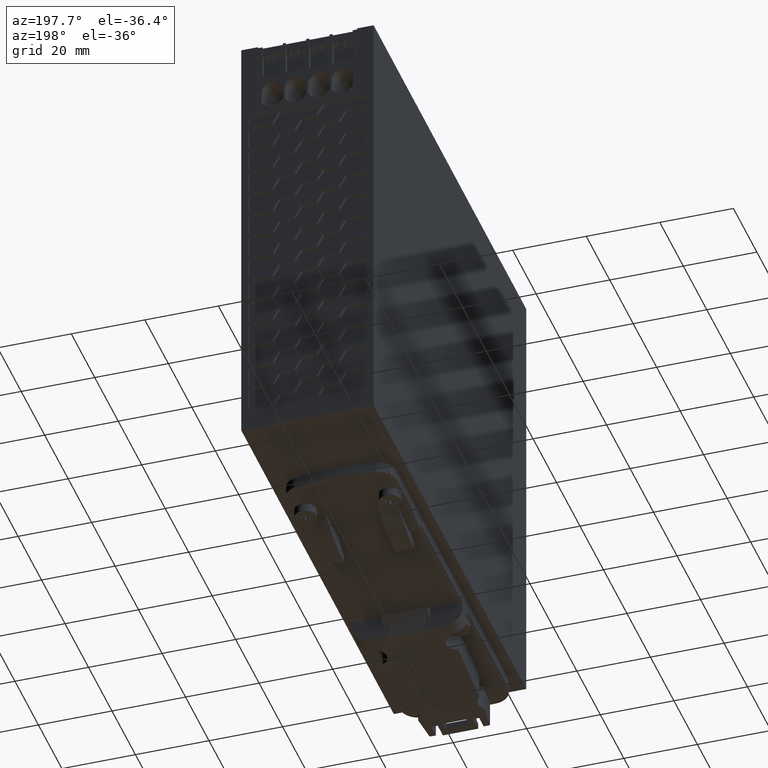
[diagram: clean part render]
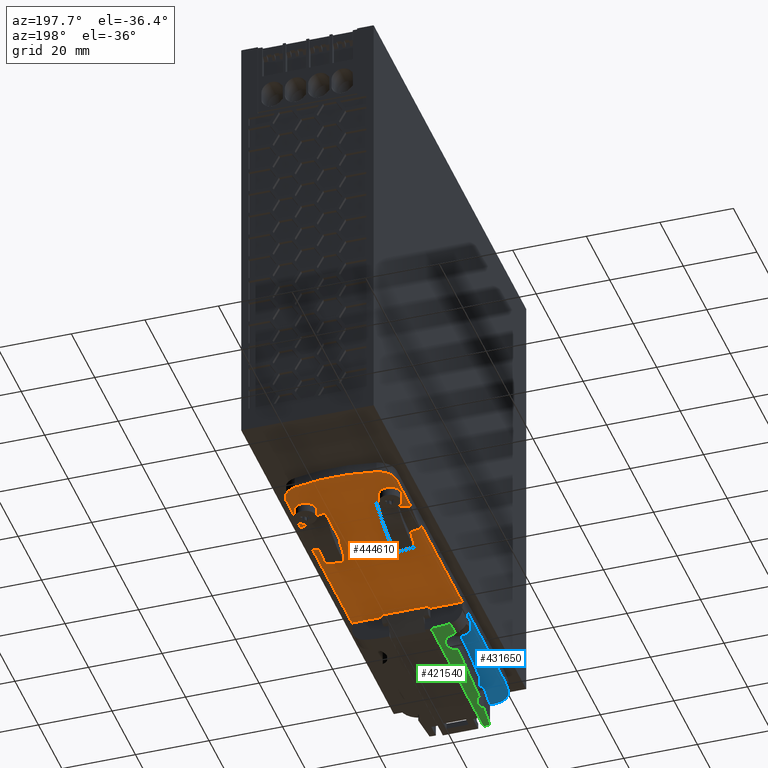
[diagram: same view with three faces highlighted in distinct colors, each labeled with its STEP entity id]
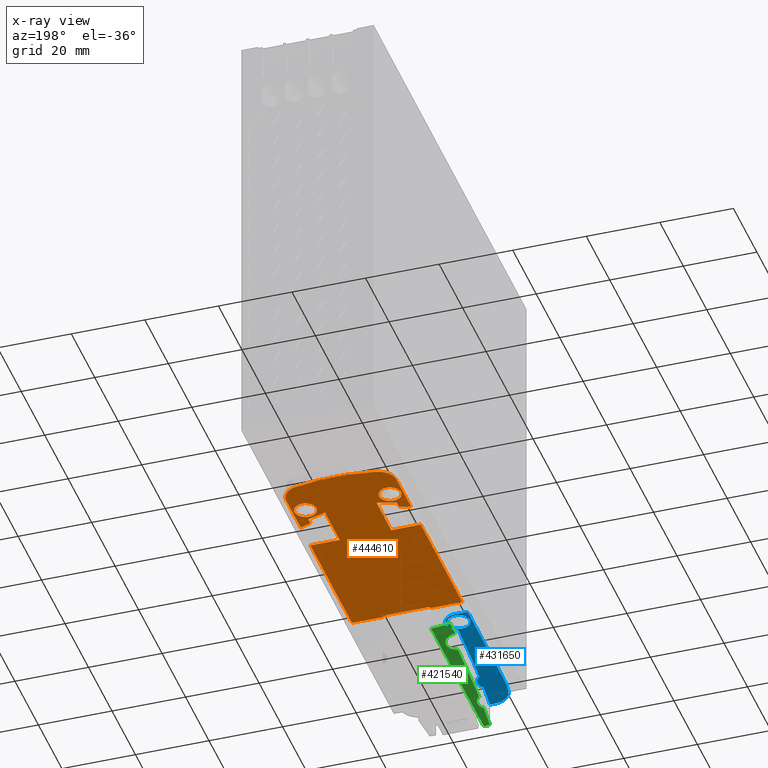
[diagram: x-ray of the same camera — body ghosted, the three highlighted faces saturated]
A machine part, auxiliary view with three faces highlighted in distinct colors.
The next image is the same camera in x-ray (body ghosted, the three faces saturated) — at least one of them is partly hidden behind the body in this view.
Their STEP definitions:

[orange] entity #444610 — the highlighted planar face has unit normal (0, 0, -1).
#406170=CARTESIAN_POINT('',(33.0006696575565,88.711504177131,
6.59999999999972));
#406180=VERTEX_POINT('',#406170);
#406270=CARTESIAN_POINT('',(33.0007818670326,80.5489273646893,
6.59999999999972));
#406280=VERTEX_POINT('',#406270);
#406310=CARTESIAN_POINT('',(33.0001130694827,129.2,6.59999999999972));
#406320=DIRECTION('',(1.37468202358229E-5,-0.999999999905513,
3.26265223505973E-55));
#406330=VECTOR('',#406320,1.);
#406340=LINE('',#406310,#406330);
#406350=CARTESIAN_POINT('',(33.0012698791509,45.0489273680436,
6.59999999999972));
#406360=VERTEX_POINT('',#406350);
#406370=EDGE_CURVE('',#406280,#406360,#406340,.T.);
#406820=CARTESIAN_POINT('',(33.000499715995,101.073749299711,
6.59999999999972));
#406830=VERTEX_POINT('',#406820);
#406860=CARTESIAN_POINT('',(33.0001130694827,129.2,6.59999999999972));
#406870=DIRECTION('',(1.37468202358229E-5,-0.999999999905513,
3.26265223505973E-55));
#406880=VECTOR('',#406870,1.);
#406890=LINE('',#406860,#406880);
#406900=EDGE_CURVE('',#406830,#406180,#406890,.T.);
#407120=CARTESIAN_POINT('',(29.1115438119969,105.948676054611,
6.59999999999972));
#407130=VERTEX_POINT('',#407120);
#407160=CARTESIAN_POINT('',(28.0004997164675,101.073680565609,
6.59999999999972));
#407170=DIRECTION('',(9.95682444457783E-60,-3.26265223399926E-55,-1.));
#407180=DIRECTION('',(-1.,1.38913403349705E-19,-9.95682444457783E-60));
#407190=AXIS2_PLACEMENT_3D('',#407160,#407170,#407180);
#407200=CIRCLE('',#407190,4.99999999999995);
#407210=EDGE_CURVE('',#407130,#406830,#407200,.T.);
#407450=CARTESIAN_POINT('',(6.88932159187441,105.948370569717,
6.59999999999972));
#407460=VERTEX_POINT('',#407450);
#407490=CARTESIAN_POINT('',(18.0011028567024,57.1987211645928,
6.59999999999972));
#407500=DIRECTION('',(9.95682444457783E-60,-3.26265223399926E-55,-1.));
#407510=DIRECTION('',(-1.,1.38913403349705E-19,-9.95682444457783E-60));
#407520=AXIS2_PLACEMENT_3D('',#407490,#407500,#407510);
#407530=CIRCLE('',#407520,49.9999999999993);
#407540=EDGE_CURVE('',#407460,#407130,#407530,.T.);
#408220=CARTESIAN_POINT('',(0.00178708709996158,45.0484737300857,
6.59999999999972));
#408230=DIRECTION('',(0.999999999905513,1.37468202375279E-5,
5.47171506780131E-60));
#408240=VECTOR('',#408230,1.);
#408250=LINE('',#408220,#408240);
#408260=CARTESIAN_POINT('',(24.301269879973,45.0488077707076,
6.59999999999972));
#408270=VERTEX_POINT('',#408260);
#408280=EDGE_CURVE('',#408270,#406360,#408250,.T.);
#409920=CARTESIAN_POINT('',(24.3001130686608,129.2,6.59999999999972));
#409930=DIRECTION('',(1.37468202343577E-5,-0.999999999905512,
3.26265223505973E-55));
#409940=VECTOR('',#409930,1.);
#409950=LINE('',#409920,#409940);
#409960=CARTESIAN_POINT('',(24.3012630065629,45.5488077706603,
6.59999999999972));
#409970=VERTEX_POINT('',#409960);
#409980=EDGE_CURVE('',#409970,#408270,#409950,.T.);
#410400=CARTESIAN_POINT('',(0.00178708709996158,45.548473730133,
6.59999999999972));
#410410=DIRECTION('',(0.999999999905512,1.37468202365522E-5,
5.47171506811966E-60));
#410420=VECTOR('',#410410,1.);
#410430=LINE('',#410400,#410420);
#410440=CARTESIAN_POINT('',(11.7012630077534,45.5486345607253,
6.59999999999972));
#410450=VERTEX_POINT('',#410440);
#410460=EDGE_CURVE('',#410450,#409970,#410430,.T.);
#411010=CARTESIAN_POINT('',(11.7001130674701,129.2,6.59999999999972));
#411020=DIRECTION('',(-1.37468202363879E-5,0.999999999905512,
-3.26265223505973E-55));
#411030=VECTOR('',#411020,1.);
#411040=LINE('',#411010,#411030);
#411050=CARTESIAN_POINT('',(11.7012698811635,45.0486345607726,
6.59999999999972));
#411060=VERTEX_POINT('',#411050);
#411070=EDGE_CURVE('',#411060,#410450,#411040,.T.);
#411450=CARTESIAN_POINT('',(0.00178708709996158,45.0484737300857,
6.59999999999972));
#411460=DIRECTION('',(0.999999999905513,1.37468202375279E-5,
5.47171506780131E-60));
#411470=VECTOR('',#411460,1.);
#411480=LINE('',#411450,#411470);
#411490=CARTESIAN_POINT('',(3.00126988198557,45.0485149634365,
6.59999999999972));
#411500=VERTEX_POINT('',#411490);
#411510=EDGE_CURVE('',#411500,#411060,#411480,.T.);
#412400=CARTESIAN_POINT('',(3.00011306664807,129.2,6.59999999999972));
#412410=DIRECTION('',(1.37468202359206E-5,-0.999999999905512,
3.26265223505973E-55));
#412420=VECTOR('',#412410,1.);
#412430=LINE('',#412400,#412420);
#412440=CARTESIAN_POINT('',(3.00078186986719,80.5485149600822,
6.59999999999972));
#412450=VERTEX_POINT('',#412440);
#412460=EDGE_CURVE('',#412450,#411500,#412430,.T.);
#412830=CARTESIAN_POINT('',(3.00066966039108,88.7110917725239,
6.59999999999974));
#412840=VERTEX_POINT('',#412830);
#412870=CARTESIAN_POINT('',(3.00011306664807,129.2,6.59999999999972));
#412880=DIRECTION('',(1.37468202359206E-5,-0.999999999905512,
3.26265223505973E-55));
#412890=VECTOR('',#412880,1.);
#412900=LINE('',#412870,#412890);
#412910=CARTESIAN_POINT('',(3.00049971882965,101.073336895104,
6.59999999999972));
#412920=VERTEX_POINT('',#412910);
#412930=EDGE_CURVE('',#412920,#412840,#412900,.T.);
#413160=CARTESIAN_POINT('',(8.00049971835728,101.073405629205,
6.59999999999972));
#413170=DIRECTION('',(9.95682444457783E-60,-3.26265223399926E-55,-1.));
#413180=DIRECTION('',(-1.,1.38913403349705E-19,-9.95682444457783E-60));
#413190=AXIS2_PLACEMENT_3D('',#413160,#413170,#413180);
#413200=CIRCLE('',#413190,5.00000000000008);
#413210=EDGE_CURVE('',#412920,#407460,#413200,.T.);
#413410=CARTESIAN_POINT('',(0.00178708709996158,80.5484737334401,
6.59999999999972));
#413420=DIRECTION('',(-0.999999999905513,-1.37468202355511E-5,
-5.47171506844629E-60));
#413430=VECTOR('',#413420,1.);
#413440=LINE('',#413410,#413430);
#413450=CARTESIAN_POINT('',(11.0007818691113,80.5486249346441,
6.59999999999972));
#413460=VERTEX_POINT('',#413450);
#413470=EDGE_CURVE('',#413460,#412450,#413440,.T.);
#414300=CARTESIAN_POINT('',(11.000113067404,129.2,6.59999999999972));
#414310=DIRECTION('',(-1.3746820235798E-5,0.999999999905513,
-3.26265223505973E-55));
#414320=VECTOR('',#414310,1.);
#414330=LINE('',#414300,#414320);
#414340=CARTESIAN_POINT('',(11.00060950093,93.0873923219355,
6.59999999999972));
#414350=VERTEX_POINT('',#414340);
#414360=EDGE_CURVE('',#413460,#414350,#414330,.T.);
#414920=CARTESIAN_POINT('',(6.00011306693153,129.2,6.59999999999972));
#414930=DIRECTION('',(-1.37468202359883E-5,0.999999999905512,
-3.26265223505973E-55));
#414940=VECTOR('',#414930,1.);
#414950=LINE('',#414920,#414940);
#414960=CARTESIAN_POINT('',(6.00065459239778,89.8072199316904,
6.59999999999972));
#414970=VERTEX_POINT('',#414960);
#414980=CARTESIAN_POINT('',(6.00063035828749,91.5701083575295,
6.59999999999972));
#414990=VERTEX_POINT('',#414980);
#415000=EDGE_CURVE('',#414970,#414990,#414950,.T.);
#417530=CARTESIAN_POINT('',(6.00065459239785,89.8072199267511,
6.59999999999972));
#417540=CARTESIAN_POINT('',(5.98476421142438,89.8022766316507,
6.59999999999972));
#417550=CARTESIAN_POINT('',(5.95298958652914,89.7923702841277,
6.59999999999972));
#417560=CARTESIAN_POINT('',(5.88946914156527,89.7724650776187,
6.59999999999972));
#417570=CARTESIAN_POINT('',(5.8101224164082,89.7474118773588,
6.59999999999972));
#417580=CARTESIAN_POINT('',(5.7387753413328,89.7246590431978,
6.59999999999972));
#417590=CARTESIAN_POINT('',(5.69123806289457,89.709404959447,
6.59999999999972));
#417600=CARTESIAN_POINT('',(5.65955442620393,89.6992109631759,
6.59999999999972));
#417610=CARTESIAN_POINT('',(5.57245576005785,89.6710776141812,
6.59999999999972));
#417620=CARTESIAN_POINT('',(5.43010635000332,89.6244959087909,
6.59999999999972));
#417630=CARTESIAN_POINT('',(5.05127607754603,89.4979564213531,
6.59999999999972));
#417640=CARTESIAN_POINT('',(4.48590698230466,89.2994310857445,
6.59999999999972));
#417650=CARTESIAN_POINT('',(3.86339380902277,89.0633757548544,
6.59999999999972));
#417660=CARTESIAN_POINT('',(3.4308793824773,88.8899380064901,
6.59999999999972));
#417670=CARTESIAN_POINT('',(3.23088705584881,88.8075050167989,
6.59999999999972));
#417680=CARTESIAN_POINT('',(3.14641726128744,88.7722888845206,
6.59999999999972));
#417690=CARTESIAN_POINT('',(3.11955406311227,88.7610513605265,
6.59999999999972));
#417700=CARTESIAN_POINT('',(3.10420751573085,88.7546207225749,
6.59999999999972));
#417710=CARTESIAN_POINT('',(3.08119201267528,88.7449644878059,
6.59999999999974));
#417720=CARTESIAN_POINT('',(3.05434811198608,88.7336809751512,
6.59999999999972));
#417730=CARTESIAN_POINT('',(3.02750737338545,88.7223899577265,
6.59999999999972));
#417740=CARTESIAN_POINT('',(3.01408794729577,88.7167422076046,
6.59999999999972));
#417750=CARTESIAN_POINT('',(3.00641989085222,88.7135144791262,
6.59999999999972));
#417760=CARTESIAN_POINT('',(3.00258618325065,88.7118998529655,
6.59999999999972));
#417770=CARTESIAN_POINT('',(3.00066965469374,88.7110917684843,
6.59999999999972));
#417780=B_SPLINE_CURVE_WITH_KNOTS('',3,(#417530,#417540,#417550,#417560,
#417570,#417580,#417590,#417600,#417610,#417620,#417630,#417640,#417650,
#417660,#417670,#417680,#417690,#417700,#417710,#417720,#417730,#417740,
#417750,#417760,#417770),.UNSPECIFIED.,.F.,.F.,(4,1,1,1,1,1,1,1,1,1,1,1,
1,1,1,1,1,1,1,1,1,1,4),(0.,0.015624733671173,0.031249469653176,
0.062499044700485,0.09374860621571,0.101561002358867,0.109373399372656,
0.124998194456258,0.187498141469384,0.249998122328627,0.499998939434173,
0.750035154333188,0.875018056520831,0.937509067185836,0.953131804020811,
0.960943172601073,0.964848856958487,0.968754541260401,0.984377271003576,
0.992188635879079,0.9960943180232,0.998047159057379,1.),.UNSPECIFIED.);
#417790=EDGE_CURVE('',#414970,#412840,#417780,.T.);
#418680=CARTESIAN_POINT('',(11.0006095006035,93.0873923209287,
6.59999999999972));
#418690=CARTESIAN_POINT('',(11.000196751031,93.0872900597221,
6.59999999999972));
#418700=CARTESIAN_POINT('',(10.999371709707,93.0870836924227,
6.59999999999972));
#418710=CARTESIAN_POINT('',(10.9977214920801,93.0866715037043,
6.59999999999972));
#418720=CARTESIAN_POINT('',(10.9948336822771,93.0859498746094,
6.59999999999972));
#418730=CARTESIAN_POINT('',(10.9890580069811,93.0845068277512,
6.59999999999972));
#418740=CARTESIAN_POINT('',(10.9775068193365,93.0816200505471,
6.59999999999972));
#418750=CARTESIAN_POINT('',(10.9544041242785,93.0758477175968,
6.59999999999972));
#418760=CARTESIAN_POINT('',(10.9280008914586,93.0692502390184,
6.59999999999972));
#418770=CARTESIAN_POINT('',(10.9015974678113,93.062652391701,
6.59999999999972));
#418780=CARTESIAN_POINT('',(10.8751932929652,93.0560553280313,
6.59999999999972));
#418790=CARTESIAN_POINT('',(10.842191596814,93.047791663045,
6.59999999999972));
#418800=CARTESIAN_POINT('',(10.8025975274606,93.03784092553,
6.59999999999972));
#418810=CARTESIAN_POINT('',(10.749815116448,93.0245304632089,
6.59999999999972));
#418820=CARTESIAN_POINT('',(10.6046973319026,92.9877453892261,
6.59999999999972));
#418830=CARTESIAN_POINT('',(10.4201817371273,92.9401681187926,
6.59999999999972));
#418840=CARTESIAN_POINT('',(10.2095657471826,92.8847604317284,
6.59999999999972));
#418850=CARTESIAN_POINT('',(9.99911272655243,92.8286593111742,
6.59999999999972));
#418860=CARTESIAN_POINT('',(9.63126237292319,92.7286679798648,
6.59999999999972));
#418870=CARTESIAN_POINT('',(9.10714465667324,92.5806735776707,
6.59999999999972));
#418880=CARTESIAN_POINT('',(8.2716973113458,92.3329770040235,
6.59999999999972));
#418890=CARTESIAN_POINT('',(7.44118225464545,92.0690368792015,
6.59999999999972));
#418900=CARTESIAN_POINT('',(6.71921317224135,91.8241206403732,
6.59999999999972));
#418910=CARTESIAN_POINT('',(6.38518125973321,91.7072077378555,
6.59999999999972));
#418920=CARTESIAN_POINT('',(6.24407775960413,91.6571872525261,
6.59999999999972));
#418930=CARTESIAN_POINT('',(6.19279342057924,91.6389372067753,
6.59999999999972));
#418940=CARTESIAN_POINT('',(6.15434148257273,91.6252202740369,
6.59999999999972));
#418950=CARTESIAN_POINT('',(6.11590216651293,91.6114703403763,
6.59999999999972));
#418960=CARTESIAN_POINT('',(6.08387912038794,91.5999876654989,
6.59999999999972));
#418970=CARTESIAN_POINT('',(6.05826406302292,91.5907930549171,
6.59999999999972));
#418980=CARTESIAN_POINT('',(6.03905261984919,91.583898704898,
6.59999999999972));
#418990=CARTESIAN_POINT('',(6.02304338695602,91.5781525815445,
6.59999999999972));
#419000=CARTESIAN_POINT('',(6.01183668939018,91.5741309623451,
6.59999999999972));
#419010=CARTESIAN_POINT('',(6.00623345456848,91.5721198450717,
6.59999999999972));
#419020=CARTESIAN_POINT('',(6.00343178541443,91.5711144020357,
6.59999999999972));
#419030=CARTESIAN_POINT('',(6.00183085987747,91.5705397281952,
6.59999999999972));
#419040=CARTESIAN_POINT('',(6.00103026975624,91.5702527045728,
6.59999999999972));
#419050=CARTESIAN_POINT('',(6.0006302817501,91.5701083331256,
6.59999999999972));
#419060=B_SPLINE_CURVE_WITH_KNOTS('',3,(#418680,#418690,#418700,#418710,
#418720,#418730,#418740,#418750,#418760,#418770,#418780,#418790,#418800,
#418810,#418820,#418830,#418840,#418850,#418860,#418870,#418880,#418890,
#418900,#418910,#418920,#418930,#418940,#418950,#418960,#418970,#418980,
#418990,#419000,#419010,#419020,#419030,#419040,#419050),.UNSPECIFIED.,
.F.,.F.,(4,1,1,1,1,1,1,1,1,1,1,1,1,1,1,1,1,1,1,1,1,1,1,1,1,1,1,1,1,1,1,1
,1,1,1,4),(0.,0.000244037983802,0.000488076222574,0.00097615299268,
0.001952307117527,0.003904616536751,0.007809237674098,0.015618484804456,
0.019523263546943,0.023428042262412,0.03123759862989,0.039047606437888,
0.046857614960146,0.062477637924135,0.124964387955741,0.15621335078156,
0.187462278406562,0.249960417070914,0.374981011362291,0.500003505122966,
0.750040847926857,0.875035739128354,0.93752237031702,0.95314238293342,
0.960952386786285,0.96876239065677,0.976571943561825,0.984381496520365,
0.988286120545852,0.992190744594104,0.996095366606573,0.998047676530583,
0.999023831036303,0.999511908054342,0.999755952598832,1.),.UNSPECIFIED.)
;
#419070=EDGE_CURVE('',#414350,#414990,#419060,.T.);
#443120=CARTESIAN_POINT('',(33.7512929131708,43.4947560284076,
6.59999999999972));
#443130=DIRECTION('',(9.95682444457778E-60,-3.26265223399926E-55,-1.));
#443140=DIRECTION('',(-1.,1.38913403349705E-19,-9.95682444457783E-60));
#443150=AXIS2_PLACEMENT_3D('',#443120,#443130,#443140);
#443160=PLANE('',#443150);
#443170=ORIENTED_EDGE('',*,*,#406370,.T.);
#443180=CARTESIAN_POINT('',(0.00178708709996158,80.5484737334401,
6.59999999999972));
#443190=DIRECTION('',(0.999999999905512,1.37468202355531E-5,
5.47171506844563E-60));
#443200=VECTOR('',#443190,1.);
#443210=LINE('',#443180,#443200);
#443220=CARTESIAN_POINT('',(25.0007818677885,80.5488173901274,
6.59999999999972));
#443230=VERTEX_POINT('',#443220);
#443240=EDGE_CURVE('',#443230,#406280,#443210,.T.);
#443250=ORIENTED_EDGE('',*,*,#443240,.T.);
#443260=CARTESIAN_POINT('',(25.0001130687268,129.2,6.59999999999972));
#443270=DIRECTION('',(-1.37468202356956E-5,0.999999999905512,
-3.26265223505973E-55));
#443280=VECTOR('',#443270,1.);
#443290=LINE('',#443260,#443280);
#443300=CARTESIAN_POINT('',(25.0006094996072,93.0875847774152,
6.59999999999759));
#443310=VERTEX_POINT('',#443300);
#443320=EDGE_CURVE('',#443230,#443310,#443290,.T.);
#443330=ORIENTED_EDGE('',*,*,#443320,.F.);
#443340=CARTESIAN_POINT('',(25.0006094996072,93.0875847774143,
6.59999999999972));
#443350=CARTESIAN_POINT('',(25.0010222519934,93.0874825275536,
6.59999999999972));
#443360=CARTESIAN_POINT('',(25.0018472989053,93.0872761825704,
6.59999999999972));
#443370=CARTESIAN_POINT('',(25.0034975278931,93.0868640392918,
6.59999999999972));
#443380=CARTESIAN_POINT('',(25.0063853574319,93.0861424890967,
6.59999999999972));
#443390=CARTESIAN_POINT('',(25.0121610724934,93.08469960124,
6.59999999999974));
#443400=CARTESIAN_POINT('',(25.0237123395021,93.0818131412894,
6.59999999999972));
#443410=CARTESIAN_POINT('',(25.0468151934023,93.0760414434465,
6.59999999999974));
#443420=CARTESIAN_POINT('',(25.07321860804,93.0694446920108,
6.59999999999972));
#443430=CARTESIAN_POINT('',(25.0996222123559,93.0628475674284,
6.59999999999972));
#443440=CARTESIAN_POINT('',(25.1260265599203,93.0562511951009,
6.59999999999972));
#443450=CARTESIAN_POINT('',(25.1590284895179,93.0479884616831,
6.59999999999972));
#443460=CARTESIAN_POINT('',(25.1986228584205,93.0380389158941,
6.59999999999972));
#443470=CARTESIAN_POINT('',(25.2514055995795,93.024729762713,
6.59999999999972));
#443480=CARTESIAN_POINT('',(25.3965244277217,92.9879488075769,
6.59999999999972));
#443490=CARTESIAN_POINT('',(25.5810413072573,92.9403765179874,
6.59999999999972));
#443500=CARTESIAN_POINT('',(25.7916588247903,92.8849746386807,
6.59999999999972));
#443510=CARTESIAN_POINT('',(26.0021133866972,92.8288793000628,
6.59999999999972));
#443520=CARTESIAN_POINT('',(26.369966489902,92.7288980848095,
6.59999999999972));
#443530=CARTESIAN_POINT('',(26.8940882748331,92.5809180923427,
6.59999999999972));
#443540=CARTESIAN_POINT('',(27.7295424295657,92.3332444871227,
6.59999999999972));
#443550=CARTESIAN_POINT('',(28.5600647428124,92.0693271967608,
6.59999999999972));
#443560=CARTESIAN_POINT('',(29.2820405585789,91.8244308075066,
6.59999999999974));
#443570=CARTESIAN_POINT('',(29.6160756853386,91.7075270887904,
6.59999999999972));
#443580=CARTESIAN_POINT('',(29.7571805606664,91.6575104829261,
6.59999999999972));
#443590=CARTESIAN_POINT('',(29.8084654014353,91.6392618471759,
6.59999999999972));
#443600=CARTESIAN_POINT('',(29.8469177165573,91.6255459716244,
6.59999999999972));
#443610=CARTESIAN_POINT('',(29.8853574106404,91.6117970948052,
6.59999999999972));
#443620=CARTESIAN_POINT('',(29.9173807724559,91.6003153003623,
6.59999999999972));
#443630=CARTESIAN_POINT('',(29.9429960826061,91.591121394035,
6.59999999999972));
#443640=CARTESIAN_POINT('',(29.9622077153244,91.5842275722104,
6.59999999999972));
#443650=CARTESIAN_POINT('',(29.9782171061944,91.5784818890114,
6.59999999999972));
#443660=CARTESIAN_POINT('',(29.9894239143255,91.5744605779258,
6.59999999999972));
#443670=CARTESIAN_POINT('',(29.9950272044384,91.5724496147065,
6.59999999999972));
#443680=CARTESIAN_POINT('',(29.9978289012348,91.5714442486989,
6.59999999999972));
#443690=CARTESIAN_POINT('',(29.9994298425712,91.5708696188739,
6.59999999999972));
#443700=CARTESIAN_POINT('',(30.0002304405834,91.5705826172625,
6.59999999999972));
#443710=CARTESIAN_POINT('',(30.0006304325588,91.570438256813,
6.59999999999972));
#443720=B_SPLINE_CURVE_WITH_KNOTS('',3,(#443340,#443350,#443360,#443370,
#443380,#443390,#443400,#443410,#443420,#443430,#443440,#443450,#443460,
#443470,#443480,#443490,#443500,#443510,#443520,#443530,#443540,#443550,
#443560,#443570,#443580,#443590,#443600,#443610,#443620,#443630,#443640,
#443650,#443660,#443670,#443680,#443690,#443700,#443710),.UNSPECIFIED.,
.F.,.F.,(4,1,1,1,1,1,1,1,1,1,1,1,1,1,1,1,1,1,1,1,1,1,1,1,1,1,1,1,1,1,1,1
,1,1,1,4),(0.,0.000244037985387,0.000488076225778,0.000976152999124,
0.001952307130476,0.003904616562713,0.007809237726096,0.015618484908559,
0.019523263645805,0.023428042356148,0.031237598729755,0.039047606663913,
0.046857615066748,0.062477638027739,0.124964388049168,0.156213350869903,
0.187462278490375,0.249960417145302,0.374981011408979,0.500003505166397,
0.750040847944962,0.875035739136489,0.937522370320862,0.953142382936274,
0.960952386788645,0.968762390658637,0.976571943563216,0.98438149652128,
0.988286120546543,0.992190744594559,0.996095366606797,0.998047676530696,
0.999023831036355,0.999511908054371,0.999755952598848,1.),.UNSPECIFIED.)
;
#443730=CARTESIAN_POINT('',(30.0006303560198,91.5704382812119,
6.59999999999768));
#443740=VERTEX_POINT('',#443730);
#443750=EDGE_CURVE('',#443310,#443740,#443720,.T.);
#443760=ORIENTED_EDGE('',*,*,#443750,.F.);
#443770=CARTESIAN_POINT('',(30.0001130691992,129.2,6.59999999999972));
#443780=DIRECTION('',(-1.37468202359331E-5,0.999999999905513,
-3.26265223505973E-55));
#443790=VECTOR('',#443780,1.);
#443800=LINE('',#443770,#443790);
#443810=CARTESIAN_POINT('',(30.0006545901301,89.8075498553755,
6.59999999999972));
#443820=VERTEX_POINT('',#443810);
#443830=EDGE_CURVE('',#443820,#443740,#443800,.T.);
#443840=ORIENTED_EDGE('',*,*,#443830,.T.);
#443850=CARTESIAN_POINT('',(30.0006545901301,89.8075498553755,
6.59999999999972));
#443860=CARTESIAN_POINT('',(30.016545107802,89.8026069970392,
6.59999999999972));
#443870=CARTESIAN_POINT('',(30.0483200054555,89.7927015190821,
6.59999999999972));
#443880=CARTESIAN_POINT('',(30.1118410008278,89.7727980584553,
6.59999999999972));
#443890=CARTESIAN_POINT('',(30.1911884186694,89.7477470388764,
6.59999999999972));
#443900=CARTESIAN_POINT('',(30.2625361222432,89.7249961638063,
6.59999999999972));
#443910=CARTESIAN_POINT('',(30.3100738221214,89.7097433856355,
6.59999999999972));
#443920=CARTESIAN_POINT('',(30.3417577405119,89.699550259728,
6.59999999999972));
#443930=CARTESIAN_POINT('',(30.4288571838585,89.6714193033112,
6.59999999999974));
#443940=CARTESIAN_POINT('',(30.5712078807246,89.6248415087899,
6.59999999999972));
#443950=CARTESIAN_POINT('',(30.9500416565816,89.4983124339032,
6.59999999999974));
#443960=CARTESIAN_POINT('',(31.5154160833374,89.2998025500072,
6.59999999999972));
#443970=CARTESIAN_POINT('',(32.1379358675141,89.063764775543,
6.59999999999972));
#443980=CARTESIAN_POINT('',(32.570454896679,88.890338590126,
6.59999999999972));
#443990=CARTESIAN_POINT('',(32.77044957678,88.8079110998804,
6.59999999999972));
#444000=CARTESIAN_POINT('',(32.854920381288,88.7726972769628,
6.59999999999972));
#444010=CARTESIAN_POINT('',(32.8817839004219,88.7614604865354,
6.59999999999972));
#444020=CARTESIAN_POINT('',(32.8971306312597,88.7550302670154,
6.59999999999972));
#444030=CARTESIAN_POINT('',(32.9201464075162,88.7453746542797,
6.59999999999972));
#444040=CARTESIAN_POINT('',(32.9469906343602,88.7340918835978,
6.59999999999972));
#444050=CARTESIAN_POINT('',(32.9738316946944,88.7228015970152,
6.59999999999972));
#444060=CARTESIAN_POINT('',(32.9872512818257,88.7171542125611,
6.59999999999972));
#444070=CARTESIAN_POINT('',(32.9949194289703,88.7139266898567,
6.59999999999972));
#444080=CARTESIAN_POINT('',(32.998753181176,88.7123121647552,
6.59999999999972));
#444090=CARTESIAN_POINT('',(33.0006697328075,88.7115041325775,
6.59999999999972));
#444100=B_SPLINE_CURVE_WITH_KNOTS('',3,(#443850,#443860,#443870,#443880,
#443890,#443900,#443910,#443920,#443930,#443940,#443950,#443960,#443970,
#443980,#443990,#444000,#444010,#444020,#444030,#444040,#444050,#444060,
#444070,#444080,#444090),.UNSPECIFIED.,.F.,.F.,(4,1,1,1,1,1,1,1,1,1,1,1,
1,1,1,1,1,1,1,1,1,1,4),(0.,0.015624734007336,0.031249470325589,
0.06249904604598,0.093748608238673,0.101561004551492,0.109373401735089,
0.124998197158643,0.187498145349089,0.249998127373343,0.499998954614795,
0.750035064020798,0.875018001263974,0.937509040707152,0.953131784068478,
0.960943155962061,0.964848841976381,0.968754527935468,0.984377264341221,
0.992188632547832,0.996094316357438,0.998047158224346,1.),.UNSPECIFIED.)
;
#444110=EDGE_CURVE('',#443820,#406180,#444100,.T.);
#444120=ORIENTED_EDGE('',*,*,#444110,.F.);
#444130=ORIENTED_EDGE('',*,*,#406900,.T.);
#444140=ORIENTED_EDGE('',*,*,#407210,.T.);
#444150=ORIENTED_EDGE('',*,*,#407540,.T.);
#444160=ORIENTED_EDGE('',*,*,#413210,.T.);
#444170=ORIENTED_EDGE('',*,*,#412930,.F.);
#444180=ORIENTED_EDGE('',*,*,#417790,.T.);
#444190=ORIENTED_EDGE('',*,*,#415000,.F.);
#444200=ORIENTED_EDGE('',*,*,#419070,.T.);
#444210=ORIENTED_EDGE('',*,*,#414360,.T.);
#444220=ORIENTED_EDGE('',*,*,#413470,.F.);
#444230=ORIENTED_EDGE('',*,*,#412460,.F.);
#444240=ORIENTED_EDGE('',*,*,#411510,.F.);
#444250=ORIENTED_EDGE('',*,*,#411070,.F.);
#444260=ORIENTED_EDGE('',*,*,#410460,.F.);
#444270=ORIENTED_EDGE('',*,*,#409980,.F.);
#444280=ORIENTED_EDGE('',*,*,#408280,.F.);
#444290=EDGE_LOOP('',(#444280,#444270,#444260,#444250,#444240,#444230,
#444220,#444210,#444200,#444190,#444180,#444170,#444160,#444150,#444140,
#444130,#444120,#443840,#443760,#443330,#443250,#443170));
#444300=FACE_OUTER_BOUND('',#444290,.T.);
#444310=CARTESIAN_POINT('',(29.5005749452048,95.6012444441962,
6.59999999999972));
#444320=DIRECTION('',(9.95682444457783E-60,-3.26265223399926E-55,-1.));
#444330=DIRECTION('',(-1.,1.38913403349705E-19,-9.95682444457783E-60));
#444340=AXIS2_PLACEMENT_3D('',#444310,#444320,#444330);
#444350=CIRCLE('',#444340,3.);
#444360=CARTESIAN_POINT('',(32.5005749452048,95.6012444441962,
6.59999999999972));
#444370=VERTEX_POINT('',#444360);
#444380=CARTESIAN_POINT('',(26.5005749452048,95.6012444441962,
6.59999999999972));
#444390=VERTEX_POINT('',#444380);
#444400=EDGE_CURVE('',#444370,#444390,#444350,.T.);
#444410=ORIENTED_EDGE('',*,*,#444400,.F.);
#444420=EDGE_CURVE('',#444390,#444370,#444350,.T.);
#444430=ORIENTED_EDGE('',*,*,#444420,.F.);
#444440=EDGE_LOOP('',(#444430,#444410));
#444450=FACE_BOUND('',#444440,.T.);
#444460=CARTESIAN_POINT('',(6.50057494737803,95.6009282673308,
6.59999999999972));
#444470=DIRECTION('',(9.95682444457783E-60,-3.26265223399926E-55,-1.));
#444480=DIRECTION('',(-1.,1.38913403349705E-19,-9.95682444457783E-60));
#444490=AXIS2_PLACEMENT_3D('',#444460,#444470,#444480);
#444500=CIRCLE('',#444490,3.00000000000002);
#444510=CARTESIAN_POINT('',(3.50057494737801,95.6009282673308,
6.59999999999972));
#444520=VERTEX_POINT('',#444510);
#444530=CARTESIAN_POINT('',(9.50057494737806,95.6009282673308,
6.59999999999972));
#444540=VERTEX_POINT('',#444530);
#444550=EDGE_CURVE('',#444520,#444540,#444500,.T.);
#444560=ORIENTED_EDGE('',*,*,#444550,.F.);
#444570=EDGE_CURVE('',#444540,#444520,#444500,.T.);
#444580=ORIENTED_EDGE('',*,*,#444570,.F.);
#444590=EDGE_LOOP('',(#444580,#444560));
#444600=FACE_BOUND('',#444590,.T.);
#444610=ADVANCED_FACE('',(#444300,#444450,#444600),#443160,.T.);

[blue] entity #431650 — the highlighted planar face has unit normal (0, 0, -1).
#404590=CARTESIAN_POINT('',(8.36087027498925,0.198588636661924,
6.59999999999972));
#404600=VERTEX_POINT('',#404590);
#404630=CARTESIAN_POINT('',(8.36080154088798,5.1985886361894,
6.59999999999972));
#404640=DIRECTION('',(9.95682444457783E-60,-3.26265223399926E-55,-1.));
#404650=DIRECTION('',(-1.,1.38913403349705E-19,-9.95682444457783E-60));
#404660=AXIS2_PLACEMENT_3D('',#404630,#404640,#404650);
#404670=CIRCLE('',#404660,4.99999999999992);
#404680=CARTESIAN_POINT('',(3.41209476745904,4.48423489285386,
6.59999999999972));
#404690=VERTEX_POINT('',#404680);
#404700=EDGE_CURVE('',#404600,#404690,#404670,.T.);
#405160=CARTESIAN_POINT('',(9.78540266523366,0.198608219452638,
6.59999999999972));
#405170=VERTEX_POINT('',#405160);
#405200=CARTESIAN_POINT('',(0.00178708709996157,0.198473725847947,
6.59999999999972));
#405210=DIRECTION('',(0.999999999905513,1.37468202386569E-5,
5.47171506743298E-60));
#405220=VECTOR('',#405210,1.);
#405230=LINE('',#405200,#405220);
#405240=EDGE_CURVE('',#404600,#405170,#405230,.T.);
#412130=CARTESIAN_POINT('',(3.00174895867079,10.1985149667294,
6.59999999999972));
#412140=VERTEX_POINT('',#412130);
#412170=CARTESIAN_POINT('',(3.00011306664807,129.2,6.59999999999972));
#412180=DIRECTION('',(1.37468202359206E-5,-0.999999999905512,
3.26265223505973E-55));
#412190=VECTOR('',#412180,1.);
#412200=LINE('',#412170,#412190);
#412210=CARTESIAN_POINT('',(3.00133174267663,40.5485149638617,
6.59999999999972));
#412220=VERTEX_POINT('',#412210);
#412230=EDGE_CURVE('',#412220,#412140,#412200,.T.);
#419300=CARTESIAN_POINT('',(6.50133174234592,40.5485630777326,
6.59999999999972));
#419310=VERTEX_POINT('',#419300);
#419530=CARTESIAN_POINT('',(0.00178708709996158,40.5484737296605,
6.59999999999972));
#419540=DIRECTION('',(0.999999999905513,1.37468202396002E-5,
5.47171506712519E-60));
#419550=VECTOR('',#419540,1.);
#419560=LINE('',#419530,#419550);
#419570=EDGE_CURVE('',#412220,#419310,#419560,.T.);
#430160=CARTESIAN_POINT('',(7.76712501425503,33.7854527221453,
6.59999999999972));
#430170=VERTEX_POINT('',#430160);
#430220=CARTESIAN_POINT('',(6.50137985621676,37.0485630780633,
6.59999999999972));
#430230=DIRECTION('',(9.95682444457783E-60,-3.26265223399926E-55,-1.));
#430240=DIRECTION('',(-1.,1.38913403349705E-19,-9.95682444457783E-60));
#430250=AXIS2_PLACEMENT_3D('',#430220,#430230,#430240);
#430260=CIRCLE('',#430250,3.49999999999999);
#430270=EDGE_CURVE('',#419310,#430170,#430260,.T.);
#430460=CARTESIAN_POINT('',(409.201324830956,41.0540989221996,
6.59999999999972));
#430470=DIRECTION('',(9.95682444457783E-60,-3.26265223399926E-55,-1.));
#430480=DIRECTION('',(-1.,1.38913403349705E-19,-9.95682444457783E-60));
#430490=AXIS2_PLACEMENT_3D('',#430460,#430470,#430480);
#430500=CIRCLE('',#430490,401.50000000007);
#430510=CARTESIAN_POINT('',(8.69858633783803,12.7732492254556,
6.59999999999972));
#430520=VERTEX_POINT('',#430510);
#430530=EDGE_CURVE('',#430520,#430170,#430500,.T.);
#430760=CARTESIAN_POINT('',(6.50175102036319,10.0485630806145,
6.59999999999972));
#430770=DIRECTION('',(9.95682444457783E-60,-3.26265223399926E-55,-1.));
#430780=DIRECTION('',(-1.,1.38913403349705E-19,-9.95682444457783E-60));
#430790=AXIS2_PLACEMENT_3D('',#430760,#430770,#430780);
#430800=CIRCLE('',#430790,3.49999999999992);
#430810=CARTESIAN_POINT('',(9.08979119518449,7.69228464768028,
6.59999999999972));
#430820=VERTEX_POINT('',#430810);
#430830=EDGE_CURVE('',#430520,#430820,#430800,.T.);
#431090=CARTESIAN_POINT('',(409.201324832895,41.0540989223828,
6.59999999999972));
#431100=DIRECTION('',(9.95682444457783E-60,-3.26265223399926E-55,-1.));
#431110=DIRECTION('',(-1.,1.38913403349705E-19,-9.95682444457783E-60));
#431120=AXIS2_PLACEMENT_3D('',#431090,#431100,#431110);
#431130=CIRCLE('',#431120,401.500000002017);
#431140=EDGE_CURVE('',#405170,#430820,#431130,.T.);
#431280=CARTESIAN_POINT('',(12.4509311133148,-3.83647827995233,
6.59999999999972));
#431290=DIRECTION('',(9.95682444457778E-60,-3.26265223399926E-55,-1.));
#431300=DIRECTION('',(-1.,1.38913403349705E-19,-9.95682444457783E-60));
#431310=AXIS2_PLACEMENT_3D('',#431280,#431290,#431300);
#431320=PLANE('',#431310);
#431330=ORIENTED_EDGE('',*,*,#404700,.T.);
#431340=ORIENTED_EDGE('',*,*,#405240,.F.);
#431350=ORIENTED_EDGE('',*,*,#431140,.F.);
#431360=ORIENTED_EDGE('',*,*,#430830,.T.);
#431370=ORIENTED_EDGE('',*,*,#430530,.F.);
#431380=ORIENTED_EDGE('',*,*,#430270,.T.);
#431390=ORIENTED_EDGE('',*,*,#419570,.T.);
#431400=ORIENTED_EDGE('',*,*,#412230,.F.);
#431410=CARTESIAN_POINT('',(43.0017489548897,10.1990648395388,
6.59999999999972));
#431420=DIRECTION('',(9.95682444457783E-60,-3.26265223399926E-55,-1.));
#431430=DIRECTION('',(-1.,1.38913403349705E-19,-9.95682444457783E-60));
#431440=AXIS2_PLACEMENT_3D('',#431410,#431420,#431430);
#431450=CIRCLE('',#431440,39.9999999999984);
#431460=EDGE_CURVE('',#404690,#412140,#431450,.T.);
#431470=ORIENTED_EDGE('',*,*,#431460,.T.);
#431480=EDGE_LOOP('',(#431470,#431400,#431390,#431380,#431370,#431360,
#431350,#431340,#431330));
#431490=FACE_OUTER_BOUND('',#431480,.T.);
#431500=CARTESIAN_POINT('',(6.50137985621676,37.0485630780633,
6.59999999999972));
#431510=DIRECTION('',(9.95682444457783E-60,-3.26265223399926E-55,-1.));
#431520=DIRECTION('',(-1.,1.38913403349705E-19,-9.95682444457783E-60));
#431530=AXIS2_PLACEMENT_3D('',#431500,#431510,#431520);
#431540=CIRCLE('',#431530,2.99999999999999);
#431550=CARTESIAN_POINT('',(3.50137985621677,37.0485630780633,
6.59999999999972));
#431560=VERTEX_POINT('',#431550);
#431570=CARTESIAN_POINT('',(9.50137985621675,37.0485630780633,
6.59999999999972));
#431580=VERTEX_POINT('',#431570);
#431590=EDGE_CURVE('',#431560,#431580,#431540,.T.);
#431600=ORIENTED_EDGE('',*,*,#431590,.F.);
#431610=EDGE_CURVE('',#431580,#431560,#431540,.T.);
#431620=ORIENTED_EDGE('',*,*,#431610,.F.);
#431630=EDGE_LOOP('',(#431620,#431600));
#431640=FACE_BOUND('',#431630,.T.);
#431650=ADVANCED_FACE('',(#431490,#431640),#431320,.T.);

[green] entity #421540 — the highlighted cylindrical surface (partial cylindrical patch) has radius 30 mm, axis along (-0, -1, 0).
#404990=CARTESIAN_POINT('',(11.50188642607,0.198631815646309,
-2.55795384873636E-13));
#405000=VERTEX_POINT('',#404990);
#405030=CARTESIAN_POINT('',(11.5018864260698,0.19863181564628,
30.0000000000007));
#405040=DIRECTION('',(1.37468202273052E-5,-0.999999999905512,
3.26265223505973E-55));
#405050=DIRECTION('',(0.999999999905512,1.37468202273052E-5,
5.47171507113664E-60));
#405060=AXIS2_PLACEMENT_3D('',#405030,#405040,#405050);
#405070=CIRCLE('',#405060,30.000000000001);
#405080=CARTESIAN_POINT('',(9.78540266523366,0.198608219452638,
0.0491455297475056));
#405090=VERTEX_POINT('',#405080);
#405100=EDGE_CURVE('',#405090,#405000,#405070,.T.);
#411660=CARTESIAN_POINT('',(6.30896218936534,45.0485604336881,
0.452750706226169));
#411670=VERTEX_POINT('',#411660);
#411700=CARTESIAN_POINT('',(11.5012698811826,45.0486318114086,
30.0000000000007));
#411710=DIRECTION('',(1.37468202273052E-5,-0.999999999905512,
3.26265223505973E-55));
#411720=DIRECTION('',(0.999999999905512,1.37468202273052E-5,
5.47171507113664E-60));
#411730=AXIS2_PLACEMENT_3D('',#411700,#411710,#411720);
#411740=CIRCLE('',#411730,30.000000000001);
#411750=CARTESIAN_POINT('',(11.5012698811824,45.0486318114085,
-2.55795384873636E-13));
#411760=VERTEX_POINT('',#411750);
#411770=EDGE_CURVE('',#411670,#411760,#411740,.T.);
#419320=CARTESIAN_POINT('',(6.50133174234592,40.5485630777326,
0.419601084501664));
#419330=VERTEX_POINT('',#419320);
#419360=CARTESIAN_POINT('',(11.5013317418736,40.5486318118338,
30.0000000000007));
#419370=DIRECTION('',(1.37468202273052E-5,-0.999999999905512,
3.26265223505973E-55));
#419380=DIRECTION('',(0.999999999905512,1.37468202273052E-5,
5.47171507113664E-60));
#419390=AXIS2_PLACEMENT_3D('',#419360,#419370,#419380);
#419400=CIRCLE('',#419390,30.000000000001);
#419410=CARTESIAN_POINT('',(6.3090240500564,40.5485604341133,
0.452750706226169));
#419420=VERTEX_POINT('',#419410);
#419430=EDGE_CURVE('',#419420,#419330,#419400,.T.);
#419770=CARTESIAN_POINT('',(6.30896218936534,45.0485604336881,
0.452750706226169));
#419780=DIRECTION('',(1.37468202360145E-5,-0.999999999905512,
3.26265223505973E-55));
#419790=VECTOR('',#419780,1.);
#419800=LINE('',#419770,#419790);
#419810=EDGE_CURVE('',#411670,#419420,#419800,.T.);
#419930=CARTESIAN_POINT('',(11.5012630077725,45.5486318113608,
30.0000000000007));
#419940=DIRECTION('',(1.37468202273052E-5,-0.999999999905512,
3.26265223505973E-55));
#419950=DIRECTION('',(0.999999999905512,1.37468202273052E-5,
5.47171507113664E-60));
#419960=AXIS2_PLACEMENT_3D('',#419930,#419940,#419950);
#419970=CYLINDRICAL_SURFACE('',#419960,30.000000000001);
#419980=ORIENTED_EDGE('',*,*,#411770,.T.);
#419990=ORIENTED_EDGE('',*,*,#419810,.F.);
#420000=ORIENTED_EDGE('',*,*,#419430,.F.);
#420010=CARTESIAN_POINT('',(7.76712501425629,33.7854527221456,
0.233323904833895));
#420020=CARTESIAN_POINT('',(7.81365512203501,33.8035015323924,
0.227486562009886));
#420030=CARTESIAN_POINT('',(7.9059986791881,33.841612107526,
0.21612361925105));
#420040=CARTESIAN_POINT('',(8.04207294606285,33.9047164308342,
0.200016219299386));
#420050=CARTESIAN_POINT('',(8.17545621260913,33.9736662561345,
0.184838978612618));
#420060=CARTESIAN_POINT('',(8.30600592724183,34.0484170111877,
0.170569338042412));
#420070=CARTESIAN_POINT('',(8.43341805930805,34.1288347257879,
0.157200294562955));
#420080=CARTESIAN_POINT('',(8.55751035382655,34.214849198985,
0.144708400070527));
#420090=CARTESIAN_POINT('',(8.67790660443852,34.3062360944361,
0.1330867497322));
#420100=CARTESIAN_POINT('',(8.79464529843596,34.4030720116735,
0.122285581589523));
#420110=CARTESIAN_POINT('',(8.90738857107609,34.5051657678486,
0.112291024445909));
#420120=CARTESIAN_POINT('',(9.0159325649444,34.6124200944253,
0.103074196700902));
#420130=CARTESIAN_POINT('',(9.11978091958929,34.7243950655831,
0.0946278273490577));
#420140=CARTESIAN_POINT('',(9.21872627655905,34.8408906688894,
0.086918103031735));
#420150=CARTESIAN_POINT('',(9.31251777765281,34.961628838921,
0.0799141146597719));
#420160=CARTESIAN_POINT('',(9.4009409681596,35.0863362564376,
0.0735818896728517));
#420170=CARTESIAN_POINT('',(9.48382123430567,35.2147628708784,
0.0678851762763486));
#420180=CARTESIAN_POINT('',(9.56089740453573,35.3464752741877,
0.0627944715043327));
#420190=CARTESIAN_POINT('',(9.63207384168236,35.4812478599032,
0.0582705060317323));
#420200=CARTESIAN_POINT('',(9.69722003090819,35.6187656980434,
0.0542786627255225));
#420210=CARTESIAN_POINT('',(9.7563156980387,35.7589505101851,
0.050780706834729));
#420220=CARTESIAN_POINT('',(9.80923647432267,35.9014855756319,
0.0477475778128564));
#420230=CARTESIAN_POINT('',(9.85590651461463,36.046142606016,
0.0451506153480636));
#420240=CARTESIAN_POINT('',(9.89624050174848,36.1926351581167,
0.0429649583002174));
#420250=CARTESIAN_POINT('',(9.93018014460849,36.3407338749012,
0.0411680331727666));
#420260=CARTESIAN_POINT('',(9.95765042880972,36.4901023436154,
0.0397418268221941));
#420270=CARTESIAN_POINT('',(9.97861045501738,36.6404672547404,
0.0386706278696636));
#420280=CARTESIAN_POINT('',(9.99303160027145,36.7915652341812,
0.0379420806107191));
#420290=CARTESIAN_POINT('',(10.0008908294812,36.9431751059592,
0.0375479884067715));
#420300=CARTESIAN_POINT('',(10.0021697571035,37.095057586787,
0.0374838954030281));
#420310=CARTESIAN_POINT('',(9.99685702236895,37.246898811728,
0.0377497621702787));
#420320=CARTESIAN_POINT('',(9.98495834928052,37.3983843009868,
0.0383485797935919));
#420330=CARTESIAN_POINT('',(9.96650162712665,37.5491818523566,
0.039286987487742));
#420340=CARTESIAN_POINT('',(9.94149524595379,37.6991970687465,
0.0405765597863592));
#420350=CARTESIAN_POINT('',(9.90995493683689,37.8481628739394,
0.042232998875221));
#420360=CARTESIAN_POINT('',(9.87190634736575,37.9958238045706,
0.0442755758440114));
#420370=CARTESIAN_POINT('',(9.8274544663698,38.1417150435195,
0.0467233900641872));
#420380=CARTESIAN_POINT('',(9.77668362594325,38.2855512021765,
0.0496001525980603));
#420390=CARTESIAN_POINT('',(9.71970135746608,38.4270246486719,
0.0529318215118622));
#420400=CARTESIAN_POINT('',(9.65663767895979,38.565827982774,
0.0567459684808398));
#420410=CARTESIAN_POINT('',(9.58761670464539,38.7017043149575,
0.0610733825251373));
#420420=CARTESIAN_POINT('',(9.51287038000042,38.8342370043895,
0.0659401273265701));
#420430=CARTESIAN_POINT('',(9.43254780113359,38.9632243541551,
0.0713791277134703));
#420440=CARTESIAN_POINT('',(9.34685317490093,39.0884034303863,
0.0774207188363505));
#420450=CARTESIAN_POINT('',(9.25585847343323,39.209697655841,
0.0841062406250614));
#420460=CARTESIAN_POINT('',(9.15976270577309,39.3268628578644,
0.0914688629044633));
#420470=CARTESIAN_POINT('',(9.05872968431369,39.4397142957154,
0.0995450300447374));
#420480=CARTESIAN_POINT('',(8.95295127022758,39.5480500765776,
0.108368925986838));
#420490=CARTESIAN_POINT('',(8.84261529591394,39.6516861311552,
0.117975061338313));
#420500=CARTESIAN_POINT('',(8.72789704292817,39.7504623563447,
0.128398303095423));
#420510=CARTESIAN_POINT('',(8.60902224330685,39.8441812854332,
0.139668358110526));
#420520=CARTESIAN_POINT('',(8.48620691453401,39.9326740093611,
0.15181402834898));
#420530=CARTESIAN_POINT('',(8.35973059548991,40.0157438819231,
0.16485569029598));
#420540=CARTESIAN_POINT('',(8.22980543439298,40.0932581668667,
0.178817726292095));
#420550=CARTESIAN_POINT('',(8.09669691252598,40.1650655275497,
0.193716363929894));
#420560=CARTESIAN_POINT('',(7.96064484357731,40.2310400028612,
0.20956717300038));
#420570=CARTESIAN_POINT('',(7.82194945650351,40.2910469481724,
0.22637499546849));
#420580=CARTESIAN_POINT('',(7.68083389873826,40.3449994744748,
0.244149688457867));
#420590=CARTESIAN_POINT('',(7.53758573182975,40.3927930535467,
0.262889203161166));
#420600=CARTESIAN_POINT('',(7.39248749062732,40.434343717011,
0.282587304413539));
#420610=CARTESIAN_POINT('',(7.2458649381709,40.4695737234643,
0.303226240950124));
#420620=CARTESIAN_POINT('',(7.09811340546905,40.4984107813537,
0.324772163539649));
#420630=CARTESIAN_POINT('',(6.94950532474826,40.5208380192636,
0.347201892041653));
#420640=CARTESIAN_POINT('',(6.80037083839225,40.536842279071,
0.370477756049866));
#420650=CARTESIAN_POINT('',(6.65088277967095,40.5464361631332,
0.394581576900549));
#420660=CARTESIAN_POINT('',(6.5511603845297,40.5485637482974,
0.411178508531322));
#420670=CARTESIAN_POINT('',(6.50133174543219,40.5485630777326,
0.419601083992319));
#420680=B_SPLINE_CURVE_WITH_KNOTS('',3,(#420010,#420020,#420030,#420040,
#420050,#420060,#420070,#420080,#420090,#420100,#420110,#420120,#420130,
#420140,#420150,#420160,#420170,#420180,#420190,#420200,#420210,#420220,
#420230,#420240,#420250,#420260,#420270,#420280,#420290,#420300,#420310,
#420320,#420330,#420340,#420350,#420360,#420370,#420380,#420390,#420400,
#420410,#420420,#420430,#420440,#420450,#420460,#420470,#420480,#420490,
#420500,#420510,#420520,#420530,#420540,#420550,#420560,#420570,#420580,
#420590,#420600,#420610,#420620,#420630,#420640,#420650,#420660,#420670)
,.UNSPECIFIED.,.F.,.F.,(4,1,1,1,1,1,1,1,1,1,1,1,1,1,1,1,1,1,1,1,1,1,1,1,
1,1,1,1,1,1,1,1,1,1,1,1,1,1,1,1,1,1,1,1,1,1,1,1,1,1,1,1,1,1,1,1,1,1,1,1,
1,1,1,1,4),(0.,0.015497234714534,0.030997482854534,0.046512646564483,
0.062027025174535,0.077587735258608,0.093148659838299,0.108738250532703,
0.124327814634299,0.140030806503102,0.155733837052167,0.171460940229126,
0.187188043074656,0.202917919258228,0.218647797133755,0.234361896695791,
0.250075983860575,0.265724976806565,0.281373953798102,0.297008005957802,
0.312642052551927,0.328260360257966,0.343878673405825,0.359493637325086,
0.375108592719084,0.390705823959836,0.406303054832601,0.421906860587602,
0.43751258417979,0.453132609462847,0.468750718052515,0.484362266023354,
0.499973823312105,0.515642763152559,0.531311716191835,0.546991337693265,
0.562670958246002,0.578348579618349,0.594026200661655,0.609690778754816,
0.625355343502895,0.640962732296161,0.656570108489376,0.67216447600765,
0.687758841434057,0.703345150446578,0.718931454238994,0.734520972569816,
0.750110492462354,0.765716032754458,0.781321575794829,0.796932046077332,
0.812542518743525,0.828165345923736,0.843788181580252,0.859416838113222,
0.875045474251856,0.890689298799013,0.9063331847598,0.921974580220726,
0.937615752597381,0.953220183377813,0.96882539811356,0.984414179982208,
1.),.UNSPECIFIED.);
#420690=CARTESIAN_POINT('',(7.76712501425503,33.7854527221453,
0.233323904833895));
#420700=VERTEX_POINT('',#420690);
#420710=EDGE_CURVE('',#420700,#419330,#420680,.T.);
#420720=ORIENTED_EDGE('',*,*,#420710,.T.);
#420730=CARTESIAN_POINT('',(8.69858633776477,12.7732492265029,
0.131245795159259));
#420740=CARTESIAN_POINT('',(8.63685120078535,13.6475189775023,
0.137038395444591));
#420750=CARTESIAN_POINT('',(8.51910593799338,15.3964711306891,
0.148471522737424));
#420760=CARTESIAN_POINT('',(8.3596706486975,18.0210155923178,
0.164858499027758));
#420770=CARTESIAN_POINT('',(8.21742440453467,20.6465983248137,
0.180205170569735));
#420780=CARTESIAN_POINT('',(8.0923749631651,23.2730699056838,
0.194263059922349));
#420790=CARTESIAN_POINT('',(7.98452912052033,25.9003107598057,
0.206812945964458));
#420800=CARTESIAN_POINT('',(7.89389084605043,28.5282023401579,
0.217665718699578));
#420810=CARTESIAN_POINT('',(7.82046604227238,31.1565933058584,
0.226661551688494));
#420820=CARTESIAN_POINT('',(7.78299225697135,32.9091335689391,
0.23133483309843));
#420830=CARTESIAN_POINT('',(7.76712501425541,33.7854527221437,
0.233323904833838));
#420840=B_SPLINE_CURVE_WITH_KNOTS('',3,(#420730,#420740,#420750,#420760,
#420770,#420780,#420790,#420800,#420810,#420820,#420830),.UNSPECIFIED.,
.F.,.F.,(4,1,1,1,1,1,1,1,4),(0.,0.124999132960453,0.24999869820818,
0.374999297326298,0.500000084244278,0.625000847487541,0.750001410304937,
0.875000923779442,1.),.UNSPECIFIED.);
#420850=CARTESIAN_POINT('',(8.69858633776447,12.7732492265028,
0.131245795157355));
#420860=VERTEX_POINT('',#420850);
#420870=EDGE_CURVE('',#420860,#420700,#420840,.T.);
#420880=ORIENTED_EDGE('',*,*,#420870,.T.);
#420890=CARTESIAN_POINT('',(8.69858636664765,12.7732492027219,
0.131245795159288));
#420900=CARTESIAN_POINT('',(8.7446257580465,12.7361289783634,
0.126925131489742));
#420910=CARTESIAN_POINT('',(8.83487790523439,12.659507983924,
0.118670168079404));
#420920=CARTESIAN_POINT('',(8.9643494030622,12.5377684672616,
0.107406789556507));
#420930=CARTESIAN_POINT('',(9.08761121849939,12.4094728916857,
0.0972088004599527));
#420940=CARTESIAN_POINT('',(9.20440018907634,12.2748356259424,
0.0880186216361949));
#420950=CARTESIAN_POINT('',(9.31435588929299,12.1342039725718,
0.0797857065709309));
#420960=CARTESIAN_POINT('',(9.41713013032994,11.9879496337841,
0.0724583460491601));
#420970=CARTESIAN_POINT('',(9.51233288709346,11.8365928247105,
0.0659875638509675));
#420980=CARTESIAN_POINT('',(9.59965908265936,11.6806202114422,
0.060319798145315));
#420990=CARTESIAN_POINT('',(9.67887732407066,11.5204662313563,
0.0553996986067204));
#421000=CARTESIAN_POINT('',(9.74979191695195,11.356559088839,
0.0511738967544204));
#421010=CARTESIAN_POINT('',(9.81224889224511,11.1892771415912,
0.0475916926837101));
#421020=CARTESIAN_POINT('',(9.86608030680415,11.0190807337284,
0.0446091906910908));
#421030=CARTESIAN_POINT('',(9.91115778057911,10.846406996871,
0.0421863881161073));
#421040=CARTESIAN_POINT('',(9.94737233411559,10.6717023738989,
0.0402892825512424));
#421050=CARTESIAN_POINT('',(9.97463952511827,10.4953847619571,
0.0388899404120764));
#421060=CARTESIAN_POINT('',(9.99289120899476,10.3179116387615,
0.0379671413489859));
#421070=CARTESIAN_POINT('',(10.0020791000211,10.1397320975767,
0.0375070081471449));
#421080=CARTESIAN_POINT('',(10.0021790532066,9.96130479249163,
0.037502035630439));
#421090=CARTESIAN_POINT('',(9.99318904001509,9.78309843768112,
0.0379526504803778));
#421100=CARTESIAN_POINT('',(9.97512790397997,9.60554034120966,
0.0388656741676812));
#421110=CARTESIAN_POINT('',(9.94803620602985,9.42909077311626,
0.0402557898317184));
#421120=CARTESIAN_POINT('',(9.91196907388711,9.2541830291741,
0.0421445763781776));
#421130=CARTESIAN_POINT('',(9.86702203591314,9.0813060675174,
0.0445593017958856));
#421140=CARTESIAN_POINT('',(9.81328763056153,8.91085668104802,
0.0475349442909589));
#421150=CARTESIAN_POINT('',(9.75089175965177,8.74328714243819,
0.0511116846064397));
#421160=CARTESIAN_POINT('',(9.67999412303872,8.57906138555681,
0.0553341908277218));
#421170=CARTESIAN_POINT('',(9.60081892024094,8.41870631040555,
0.0602490384371777));
#421180=CARTESIAN_POINT('',(9.51366889676368,8.26279552649537,
0.065902338912224));
#421190=CARTESIAN_POINT('',(9.41882788180829,8.1117496346743,
0.0723443304637783));
#421200=CARTESIAN_POINT('',(9.31659525250519,7.96596746438931,
0.0796269939218064));
#421210=CARTESIAN_POINT('',(9.20719434521969,7.82570180967871,
0.0878095098487677));
#421220=CARTESIAN_POINT('',(9.12965274612924,7.73606695024598,
0.0939036601499197));
#421230=CARTESIAN_POINT('',(9.08979119563572,7.6922846481776,
0.0971189757962918));
#421240=B_SPLINE_CURVE_WITH_KNOTS('',3,(#420890,#420900,#420910,#420920,
#420930,#420940,#420950,#420960,#420970,#420980,#420990,#421000,#421010,
#421020,#421030,#421040,#421050,#421060,#421070,#421080,#421090,#421100,
#421110,#421120,#421130,#421140,#421150,#421160,#421170,#421180,#421190,
#421200,#421210,#421220,#421230),.UNSPECIFIED.,.F.,.F.,(4,1,1,1,1,1,1,1,
1,1,1,1,1,1,1,1,1,1,1,1,1,1,1,1,1,1,1,1,1,1,1,1,4),(0.,0.031153171719575
,0.062317677483811,0.093515972403395,0.124735773545347,0.156039448331487
,0.187360820096678,0.218685288336468,0.250000351508317,0.281279379144137
,0.312550490698141,0.34381160655728,0.375068135159755,0.406304819069382,
0.437537384888199,0.468768506172583,0.500000153102547,0.5312287865328,
0.562462695441384,0.593699837314905,0.624931711309425,0.656188285563606,
0.687449501910483,0.718720751694022,0.749999911066306,0.781315046606039,
0.81263957616962,0.843960994187355,0.875264694861664,0.906484418635662,
0.937682608244756,0.968846975862025,1.),.UNSPECIFIED.);
#421250=CARTESIAN_POINT('',(9.08979119518454,7.69228464768149,
0.0971189758174376));
#421260=VERTEX_POINT('',#421250);
#421270=EDGE_CURVE('',#420860,#421260,#421240,.T.);
#421280=ORIENTED_EDGE('',*,*,#421270,.F.);
#421290=CARTESIAN_POINT('',(9.7854026618961,0.198608252083119,
0.0491455297472498));
#421300=CARTESIAN_POINT('',(9.65776528773599,1.44643072651837,
0.0564594458286081));
#421310=CARTESIAN_POINT('',(9.41418557755344,3.94328013624666,
0.0720504163785733));
#421320=CARTESIAN_POINT('',(9.19401687734016,6.44229574735186,
0.0887134282814372));
#421330=CARTESIAN_POINT('',(9.08979119516865,7.69228464767758,
0.0971189758203366));
#421340=B_SPLINE_CURVE_WITH_KNOTS('',3,(#421290,#421300,#421310,#421320,
#421330),.UNSPECIFIED.,.F.,.F.,(4,1,4),(0.,0.499999992983597,1.),
.UNSPECIFIED.);
#421350=EDGE_CURVE('',#405090,#421260,#421340,.T.);
#421360=ORIENTED_EDGE('',*,*,#421350,.T.);
#421370=ORIENTED_EDGE('',*,*,#405100,.F.);
#421380=CARTESIAN_POINT('',(11.5012630077723,45.5486318113608,
-3.41060513164848E-13));
#421390=DIRECTION('',(1.37468202273052E-5,-0.999999999905512,
3.26265223505973E-55));
#421400=VECTOR('',#421390,1.);
#421410=LINE('',#421380,#421400);
#421420=CARTESIAN_POINT('',(11.5018328134711,4.09863181527798,
-2.55795384873636E-13));
#421430=VERTEX_POINT('',#421420);
#421440=EDGE_CURVE('',#421430,#405000,#421410,.T.);
#421450=ORIENTED_EDGE('',*,*,#421440,.T.);
#421460=CARTESIAN_POINT('',(11.5012698811824,45.0486318114085,
-2.55795384873636E-13));
#421470=DIRECTION('',(1.37468202359191E-5,-0.999999999905513,
3.26265223505973E-55));
#421480=VECTOR('',#421470,1.);
#421490=LINE('',#421460,#421480);
#421500=EDGE_CURVE('',#411760,#421430,#421490,.T.);
#421510=ORIENTED_EDGE('',*,*,#421500,.T.);
#421520=EDGE_LOOP('',(#421510,#421450,#421370,#421360,#421280,#420880,
#420720,#420000,#419990,#419980));
#421530=FACE_OUTER_BOUND('',#421520,.T.);
#421540=ADVANCED_FACE('',(#421530),#419970,.T.);